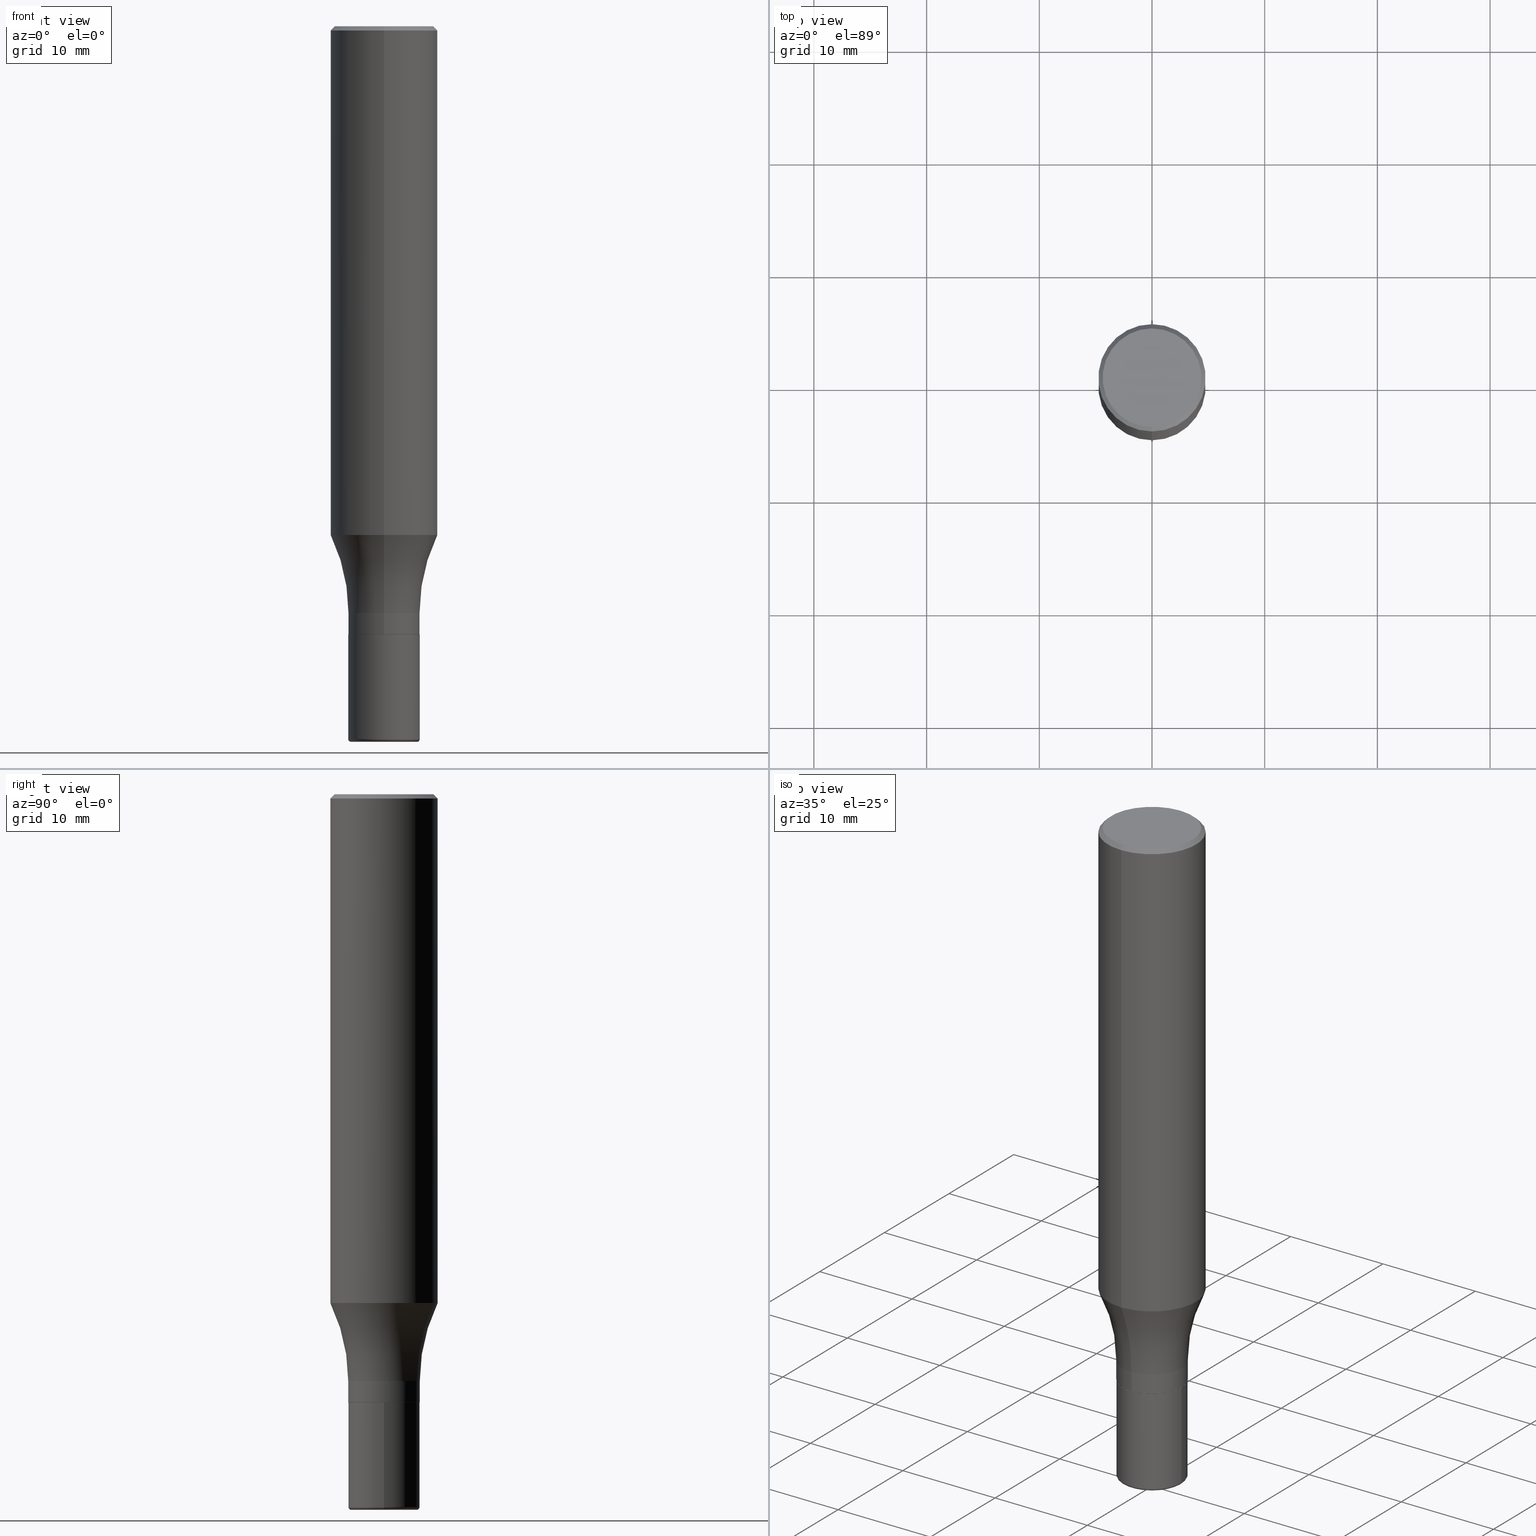
[diagram: canonical four-view strip — front | top / right | iso, engineering-drawing reading convention]
A machine part, canonical four-view strip (front | top / right | iso — engineering-drawing reading convention). The complete STEP part file that produces these views, byte-faithful:
ISO-10303-21;
HEADER;
FILE_DESCRIPTION (( 'STEP AP203' ),
    '1' );
FILE_NAME ('91242.STEP',
    '2024-02-29T19:33:33',
    ( '' ),
    ( '' ),
    'SwSTEP 2.0',
    'SolidWorks 2023',
    '' );
FILE_SCHEMA (( 'CONFIG_CONTROL_DESIGN' ));
ENDSEC;

DATA;
#1 = EDGE_CURVE ( 'NONE', #334, #469, #314, .T. ) ;
#2 = CARTESIAN_POINT ( 'NONE',  ( 5.329070518200801092E-15, 0.7499999999999930056, -2.050000000000002931 ) ) ;
#3 = CYLINDRICAL_SURFACE ( 'NONE', #440, 0.1250000000000000278 ) ;
#4 = LOCAL_TIME ( 14, 33, 33.00000000000000000, #302 ) ;
#5 = DIRECTION ( 'NONE',  ( -6.982962677686266711E-15, -1.000000000000000000, 3.490836523568371261E-15 ) ) ;
#6 = CYLINDRICAL_SURFACE ( 'NONE', #464, 0.1250000000000000278 ) ;
#7 = FACE_OUTER_BOUND ( 'NONE', #411, .T. ) ;
#8 = DIRECTION ( 'NONE',  ( -6.982962677686266711E-15, -1.000000000000000000, 3.490836523568371261E-15 ) ) ;
#9 = FACE_OUTER_BOUND ( 'NONE', #350, .T. ) ;
#10 = ORIENTED_EDGE ( 'NONE', *, *, #422, .F. ) ;
#11 = AXIS2_PLACEMENT_3D ( 'NONE', #505, #436, #356 ) ;
#12 = PERSON_AND_ORGANIZATION_ROLE ( 'creator' ) ;
#13 = AXIS2_PLACEMENT_3D ( 'NONE', #154, #317, #519 ) ;
#14 = ORGANIZATION ( 'UNSPECIFIED', 'UNSPECIFIED', '' ) ;
#15 = CARTESIAN_POINT ( 'NONE',  ( 0.1250000000000000833, -9.566658868430215055E-15, -2.489999999999999769 ) ) ;
#16 = ORIENTED_EDGE ( 'NONE', *, *, #349, .T. ) ;
#17 = CARTESIAN_POINT ( 'NONE',  ( 2.720611319883190822E-48, -3.882879628438597876E-34, -1.112306348986367091E-19 ) ) ;
#18 = DIRECTION ( 'NONE',  ( -6.982962677686265922E-15, -1.000000000000000000, 3.490836523568370866E-15 ) ) ;
#19 = VERTEX_POINT ( 'NONE', #269 ) ;
#20 = PERSON_AND_ORGANIZATION ( #259, #14 ) ;
#21 = VERTEX_POINT ( 'NONE', #30 ) ;
#22 = CIRCLE ( 'NONE', #381, 0.1250000000000000833 ) ;
#23 = VERTEX_POINT ( 'NONE', #432 ) ;
#24 = CALENDAR_DATE ( 2024, 29, 2 ) ;
#25 = ORIENTED_EDGE ( 'NONE', *, *, #170, .F. ) ;
#26 = EDGE_CURVE ( 'NONE', #224, #144, #72, .T. ) ;
#27 = PERSON_AND_ORGANIZATION_ROLE ( 'design_supplier' ) ;
#28 = ORIENTED_EDGE ( 'NONE', *, *, #367, .F. ) ;
#29 = AXIS2_PLACEMENT_3D ( 'NONE', #165, #248, #405 ) ;
#30 = CARTESIAN_POINT ( 'NONE',  ( 1.332267629550230841E-15, 0.1874999999999937550, -1.777568816028709087 ) ) ;
#31 = AXIS2_PLACEMENT_3D ( 'NONE', #171, #452, #223 ) ;
#32 = EDGE_CURVE ( 'NONE', #23, #507, #379, .T. ) ;
#33 = APPROVAL_ROLE ( '' ) ;
#34 = APPROVAL ( #372, 'UNSPECIFIED' ) ;
#35 = ORIENTED_EDGE ( 'NONE', *, *, #168, .T. ) ;
#36 = PRODUCT ( '91242', '91242', '', ( #250 ) ) ;
#37 = FACE_OUTER_BOUND ( 'NONE', #345, .T. ) ;
#38 = CARTESIAN_POINT ( 'NONE',  ( 3.668878617427351400E-31, -5.236254785352532066E-17, -0.01499999999999993179 ) ) ;
#39 = CIRCLE ( 'NONE', #412, 0.1150000000000000050 ) ;
#40 = AXIS2_PLACEMENT_3D ( 'NONE', #353, #328, #240 ) ;
#41 = DIRECTION ( 'NONE',  ( -2.445468806185136877E-29, 3.491481338843145188E-15, 1.000000000000000000 ) ) ;
#42 = FACE_OUTER_BOUND ( 'NONE', #493, .T. ) ;
#43 = ADVANCED_FACE ( 'NONE', ( #37 ), #351, .F. ) ;
#44 = DIRECTION ( 'NONE',  ( 1.000000000000000000, -6.982962677686265922E-15, 0.000000000000000000 ) ) ;
#45 = CARTESIAN_POINT ( 'NONE',  ( 0.1250000000000000278, -8.728703347107836346E-16, 6.095220969744921142E-30 ) ) ;
#46 = DIRECTION ( 'NONE',  ( -2.445919078284912062E-29, 3.490836523568370866E-15, 1.000000000000000000 ) ) ;
#47 = DIRECTION ( 'NONE',  ( -2.445919078284912062E-29, 3.490836523568370866E-15, 1.000000000000000000 ) ) ;
#48 = VECTOR ( 'NONE', #201, 39.37007874015748143 ) ;
#49 = APPROVAL_DATE_TIME ( #458, #34 ) ;
#50 = CARTESIAN_POINT ( 'NONE',  ( -8.693788533718883655E-16, -0.1245000000000074381, -2.124999999999999556 ) ) ;
#51 = FACE_OUTER_BOUND ( 'NONE', #295, .T. ) ;
#52 = EDGE_CURVE ( 'NONE', #453, #137, #39, .T. ) ;
#53 = CC_DESIGN_DATE_AND_TIME_ASSIGNMENT ( #109, #221, ( #488 ) ) ;
#54 = ADVANCED_FACE ( 'NONE', ( #228 ), #238, .T. ) ;
#55 = ORIENTED_EDGE ( 'NONE', *, *, #399, .F. ) ;
#56 = APPLICATION_PROTOCOL_DEFINITION ( 'international standard', 'config_control_design', 1994, #340 ) ;
#57 = CONICAL_SURFACE ( 'NONE', #346, 0.1875000000000000278, 0.7853981633974509435 ) ;
#58 = ORIENTED_EDGE ( 'NONE', *, *, #363, .F. ) ;
#59 = CARTESIAN_POINT ( 'NONE',  ( 0.1150000000000000050, -9.531744055041784983E-15, -2.500000000000000000 ) ) ;
#60 = ORIENTED_EDGE ( 'NONE', *, *, #276, .T. ) ;
#61 = DATE_AND_TIME ( #111, #388 ) ;
#62 = PLANE ( 'NONE',  #31 ) ;
#63 = ORIENTED_EDGE ( 'NONE', *, *, #261, .F. ) ;
#64 = AXIS2_PLACEMENT_3D ( 'NONE', #467, #74, #183 ) ;
#65 = AXIS2_PLACEMENT_3D ( 'NONE', #331, #278, #76 ) ;
#66 = CARTESIAN_POINT ( 'NONE',  ( 6.113672015462842613E-29, -8.728703347107864943E-15, -2.500000000000000000 ) ) ;
#67 = DIRECTION ( 'NONE',  ( -6.982962677686265922E-15, -1.000000000000000000, 3.494488891895536035E-15 ) ) ;
#68 = ORIENTED_EDGE ( 'NONE', *, *, #52, .T. ) ;
#69 = ADVANCED_FACE ( 'NONE', ( #237 ), #462, .T. ) ;
#70 = ADVANCED_FACE ( 'NONE', ( #520 ), #3, .T. ) ;
#71 = CIRCLE ( 'NONE', #212, 0.1150000000000000050 ) ;
#72 = LINE ( 'NONE', #390, #423 ) ;
#73 = CIRCLE ( 'NONE', #352, 0.01000000000000008174 ) ;
#74 = DIRECTION ( 'NONE',  ( -2.445919078284912062E-29, 3.490836523568370866E-15, 1.000000000000000000 ) ) ;
#75 = CARTESIAN_POINT ( 'NONE',  ( 1.110223024625203083E-15, 0.1249999999999928807, -2.050000000000000711 ) ) ;
#76 = DIRECTION ( 'NONE',  ( -1.000000000000000000, 7.105427357600964782E-15, 0.000000000000000000 ) ) ;
#77 = APPLICATION_CONTEXT ( 'configuration controlled 3d designs of mechanical parts and assemblies' ) ;
#78 = ADVANCED_FACE ( 'NONE', ( #198 ), #121, .F. ) ;
#79 = CARTESIAN_POINT ( 'NONE',  ( 0.1250000000000000000, -8.292268179752468540E-15, -2.125000000000000000 ) ) ;
#80 = CARTESIAN_POINT ( 'NONE',  ( 0.000000000000000000, 0.000000000000000000, 0.000000000000000000 ) ) ;
#81 = EDGE_CURVE ( 'NONE', #21, #102, #506, .T. ) ;
#82 = AXIS2_PLACEMENT_3D ( 'NONE', #322, #484, #157 ) ;
#83 = CIRCLE ( 'NONE', #470, 0.6249999999999998890 ) ;
#84 = AXIS2_PLACEMENT_3D ( 'NONE', #251, #294, #377 ) ;
#85 = CARTESIAN_POINT ( 'NONE',  ( 6.089217327400989947E-29, -8.693788533719431716E-15, -2.489999999999999769 ) ) ;
#86 = CARTESIAN_POINT ( 'NONE',  ( 5.197578041355437570E-29, -7.418027612582788978E-15, -2.125000000000000000 ) ) ;
#87 = LINE ( 'NONE', #90, #333 ) ;
#88 = CARTESIAN_POINT ( 'NONE',  ( 8.881784197001765083E-16, 0.1249999999999926170, -2.124500000000001165 ) ) ;
#89 = EDGE_CURVE ( 'NONE', #102, #21, #359, .T. ) ;
#90 = CARTESIAN_POINT ( 'NONE',  ( 1.309305502066175600E-15, 0.1874999999999999445, -0.01500000000000058752 ) ) ;
#91 = DIRECTION ( 'NONE',  ( -6.982962677686265922E-15, -1.000000000000000000, 4.388510833195602794E-15 ) ) ;
#92 = CIRCLE ( 'NONE', #13, 0.1250000000000000278 ) ;
#93 = ADVANCED_FACE ( 'NONE', ( #125 ), #403, .T. ) ;
#94 = CARTESIAN_POINT ( 'NONE',  ( 5.013211052679530360E-29, -7.157536744628448622E-15, -2.050000000000000266 ) ) ;
#95 = DIRECTION ( 'NONE',  ( -2.445468806185136597E-29, 3.491481338843145583E-15, 1.000000000000000000 ) ) ;
#96 = EDGE_LOOP ( 'NONE', ( #309, #147, #417, #498 ) ) ;
#97 = PERSON_AND_ORGANIZATION_ROLE ( 'design_owner' ) ;
#98 = ADVANCED_FACE ( 'NONE', ( #285 ), #341, .T. ) ;
#99 = VERTEX_POINT ( 'NONE', #366 ) ;
#100 = DIRECTION ( 'NONE',  ( -2.445919078284912062E-29, 3.490836523568370866E-15, 1.000000000000000000 ) ) ;
#101 = APPROVAL_PERSON_ORGANIZATION ( #226, #516, #33 ) ;
#102 = VERTEX_POINT ( 'NONE', #155 ) ;
#103 = APPLICATION_PROTOCOL_DEFINITION ( 'international standard', 'config_control_design', 1994, #77 ) ;
#104 = LINE ( 'NONE', #132, #508 ) ;
#105 = ORIENTED_EDGE ( 'NONE', *, *, #466, .F. ) ;
#106 = ORIENTED_EDGE ( 'NONE', *, *, #175, .F. ) ;
#107 = AXIS2_PLACEMENT_3D ( 'NONE', #204, #46, #361 ) ;
#108 = ORIENTED_EDGE ( 'NONE', *, *, #347, .T. ) ;
#109 = DATE_AND_TIME ( #24, #286 ) ;
#110 = ORIENTED_EDGE ( 'NONE', *, *, #1, .T. ) ;
#111 = CALENDAR_DATE ( 2024, 29, 2 ) ;
#112 = ORIENTED_EDGE ( 'NONE', *, *, #89, .F. ) ;
#113 = CIRCLE ( 'NONE', #203, 0.1250000000000000278 ) ;
#114 = ORIENTED_EDGE ( 'NONE', *, *, #349, .F. ) ;
#115 = AXIS2_PLACEMENT_3D ( 'NONE', #206, #501, #369 ) ;
#116 = DIRECTION ( 'NONE',  ( -2.445468806185136597E-29, 3.491481338843145583E-15, 1.000000000000000000 ) ) ;
#117 = ORIENTED_EDGE ( 'NONE', *, *, #449, .T. ) ;
#118 = ADVANCED_FACE ( 'NONE', ( #51 ), #6, .T. ) ;
#119 = DIRECTION ( 'NONE',  ( -2.445919078284912342E-29, 3.490836523568370866E-15, 1.000000000000000000 ) ) ;
#120 = DIRECTION ( 'NONE',  ( -6.982962677686265922E-15, -1.000000000000000000, 4.370956789862820361E-15 ) ) ;
#121 = PLANE ( 'NONE',  #148 ) ;
#122 = AXIS2_PLACEMENT_3D ( 'NONE', #518, #47, #329 ) ;
#123 = DIRECTION ( 'NONE',  ( -2.438088387897960049E-29, 3.491481338843145188E-15, 1.000000000000000000 ) ) ;
#124 = CARTESIAN_POINT ( 'NONE',  ( 0.000000000000000000, 0.000000000000000000, 0.000000000000000000 ) ) ;
#125 = FACE_OUTER_BOUND ( 'NONE', #434, .T. ) ;
#126 = CC_DESIGN_DATE_AND_TIME_ASSIGNMENT ( #263, #406, ( #457 ) ) ;
#127 = CARTESIAN_POINT ( 'NONE',  ( 8.881784197001254296E-16, 0.1250000000000000278, -4.363545654460464569E-16 ) ) ;
#128 = DIRECTION ( 'NONE',  ( -4.851104656540975319E-15, -0.7071067811865516806, -0.7071067811865431318 ) ) ;
#129 = FACE_OUTER_BOUND ( 'NONE', #513, .T. ) ;
#130 = AXIS2_PLACEMENT_3D ( 'NONE', #281, #159, #354 ) ;
#131 = DIRECTION ( 'NONE',  ( 1.000000000000000000, 0.000000000000000000, 0.000000000000000000 ) ) ;
#132 = CARTESIAN_POINT ( 'NONE',  ( -1.309305502066174811E-15, -0.1874999999999999722, 6.545318481690694881E-16 ) ) ;
#133 = ORIENTED_EDGE ( 'NONE', *, *, #347, .F. ) ;
#134 = ORIENTED_EDGE ( 'NONE', *, *, #52, .F. ) ;
#135 = LENGTH_MEASURE_WITH_UNIT ( LENGTH_MEASURE( 0.02539999999999999897 ), #179 );
#136 = CARTESIAN_POINT ( 'NONE',  ( -8.728703347107333448E-16, -0.1250000000000071887, -2.049999999999999822 ) ) ;
#137 = VERTEX_POINT ( 'NONE', #241 ) ;
#138 = AXIS2_PLACEMENT_3D ( 'NONE', #86, #244, #91 ) ;
#139 = CALENDAR_DATE ( 2024, 29, 2 ) ;
#140 = LOCAL_TIME ( 14, 33, 33.00000000000000000, #499 ) ;
#141 = FACE_OUTER_BOUND ( 'NONE', #509, .T. ) ;
#142 = ORIENTED_EDGE ( 'NONE', *, *, #89, .T. ) ;
#143 = EDGE_CURVE ( 'NONE', #230, #266, #283, .T. ) ;
#144 = VERTEX_POINT ( 'NONE', #88 ) ;
#145 = EDGE_CURVE ( 'NONE', #224, #189, #324, .T. ) ;
#146 = COORDINATED_UNIVERSAL_TIME_OFFSET ( 5, 0, .BEHIND. ) ;
#147 = ORIENTED_EDGE ( 'NONE', *, *, #145, .T. ) ;
#148 = AXIS2_PLACEMENT_3D ( 'NONE', #202, #446, #482 ) ;
#149 = VERTEX_POINT ( 'NONE', #402 ) ;
#150 = EDGE_LOOP ( 'NONE', ( #232, #181, #110, #106 ) ) ;
#151 = ORIENTED_EDGE ( 'NONE', *, *, #481, .T. ) ;
#152 = TOROIDAL_SURFACE ( 'NONE', #515, 0.7500000000000001110, 0.6250000000000000000 ) ;
#153 = CARTESIAN_POINT ( 'NONE',  ( 5.197578041355437570E-29, -7.418027612582788978E-15, -2.125000000000000000 ) ) ;
#154 = CARTESIAN_POINT ( 'NONE',  ( 5.014134110484069838E-29, -7.156214873315160631E-15, -2.050000000000000266 ) ) ;
#155 = CARTESIAN_POINT ( 'NONE',  ( -1.309305502066131029E-15, -0.1875000000000061340, -1.777568816028707532 ) ) ;
#156 = FACE_OUTER_BOUND ( 'NONE', #150, .T. ) ;
#157 = DIRECTION ( 'NONE',  ( 1.000000000000000000, -6.982962677686265922E-15, 4.883557194083112901E-29 ) ) ;
#158 = DIRECTION ( 'NONE',  ( -6.982962677686265922E-15, -1.000000000000000000, 3.490836523568370866E-15 ) ) ;
#159 = DIRECTION ( 'NONE',  ( -2.445919078284912062E-29, 3.490836523568370866E-15, 1.000000000000000000 ) ) ;
#160 = ADVANCED_FACE ( 'NONE', ( #42 ), #398, .T. ) ;
#161 = CC_DESIGN_APPROVAL ( #516, ( #488 ) ) ;
#162 = CARTESIAN_POINT ( 'NONE',  ( 5.013211052679530360E-29, -7.157536744628448622E-15, -2.050000000000000266 ) ) ;
#163 = CARTESIAN_POINT ( 'NONE',  ( -1.286343374582161576E-15, -0.1875000000000000833, -0.01499999999999927607 ) ) ;
#164 = DIRECTION ( 'NONE',  ( -4.937700262166401865E-15, -0.7071067811868105846, 0.7071067811862842278 ) ) ;
#165 = CARTESIAN_POINT ( 'NONE',  ( -5.237222008264649546E-15, -0.7500000000000072164, -2.049999999999997602 ) ) ;
#166 = FACE_OUTER_BOUND ( 'NONE', #299, .T. ) ;
#167 = ORIENTED_EDGE ( 'NONE', *, *, #170, .T. ) ;
#168 = EDGE_CURVE ( 'NONE', #503, #266, #362, .T. ) ;
#169 = AXIS2_PLACEMENT_3D ( 'NONE', #38, #438, #205 ) ;
#170 = EDGE_CURVE ( 'NONE', #149, #23, #327, .T. ) ;
#171 = CARTESIAN_POINT ( 'NONE',  ( 8.728703347108351078E-16, 0.1249999999999925754, -2.125000000000000888 ) ) ;
#172 = ORIENTED_EDGE ( 'NONE', *, *, #184, .T. ) ;
#173 = ORIENTED_EDGE ( 'NONE', *, *, #184, .F. ) ;
#174 = FACE_OUTER_BOUND ( 'NONE', #176, .T. ) ;
#175 = EDGE_CURVE ( 'NONE', #102, #469, #225, .T. ) ;
#176 = EDGE_LOOP ( 'NONE', ( #451, #172, #151, #344 ) ) ;
#177 = CLOSED_SHELL ( 'NONE', ( #69, #70, #514, #400, #495, #207 ) ) ;
#178 = AXIS2_PLACEMENT_3D ( 'NONE', #330, #116, #473 ) ;
#179 =( LENGTH_UNIT ( ) NAMED_UNIT ( * ) SI_UNIT ( $, .METRE. ) );
#180 = EDGE_CURVE ( 'NONE', #137, #430, #185, .T. ) ;
#181 = ORIENTED_EDGE ( 'NONE', *, *, #235, .T. ) ;
#182 = DIRECTION ( 'NONE',  ( 1.000000000000000000, -6.982962677686265133E-15, 0.000000000000000000 ) ) ;
#183 = DIRECTION ( 'NONE',  ( -6.982962677686265922E-15, -1.000000000000000000, 4.370956789862820361E-15 ) ) ;
#184 = EDGE_CURVE ( 'NONE', #137, #453, #71, .T. ) ;
#185 = CIRCLE ( 'NONE', #65, 0.01000000000000008174 ) ;
#186 = TOROIDAL_SURFACE ( 'NONE', #454, 0.7500000000000001110, 0.6250000000000000000 ) ;
#187 = ORIENTED_EDGE ( 'NONE', *, *, #410, .F. ) ;
#188 = SHAPE_DEFINITION_REPRESENTATION ( #512, #319 ) ;
#189 = VERTEX_POINT ( 'NONE', #293 ) ;
#190 = ORIENTED_EDGE ( 'NONE', *, *, #481, .F. ) ;
#191 = AXIS2_PLACEMENT_3D ( 'NONE', #312, #275, #67 ) ;
#192 = AXIS2_PLACEMENT_3D ( 'NONE', #17, #100, #326 ) ;
#193 = DIRECTION ( 'NONE',  ( -2.445919078284912062E-29, 3.490836523568370866E-15, 1.000000000000000000 ) ) ;
#194 = CARTESIAN_POINT ( 'NONE',  ( 0.000000000000000000, 0.000000000000000000, 0.000000000000000000 ) ) ;
#195 = CC_DESIGN_SECURITY_CLASSIFICATION ( #488, ( #301 ) ) ;
#196 = CARTESIAN_POINT ( 'NONE',  ( 6.135555720802942881E-29, -8.697364635517684190E-15, -2.500000000000000000 ) ) ;
#197 = FACE_OUTER_BOUND ( 'NONE', #208, .T. ) ;
#198 = FACE_OUTER_BOUND ( 'NONE', #384, .T. ) ;
#199 = CARTESIAN_POINT ( 'NONE',  ( 1.332267629550187454E-15, 0.1874999999999999722, -6.545318481690694881E-16 ) ) ;
#200 = DIRECTION ( 'NONE',  ( -2.445919078284912062E-29, 3.490836523568370866E-15, 1.000000000000000000 ) ) ;
#201 = DIRECTION ( 'NONE',  ( -2.445919078284912342E-29, 3.490836523568370866E-15, 1.000000000000000000 ) ) ;
#202 = CARTESIAN_POINT ( 'NONE',  ( 1.204561061900881047E-15, 0.1725000000000000144, -6.022249156329932853E-16 ) ) ;
#203 = AXIS2_PLACEMENT_3D ( 'NONE', #445, #404, #435 ) ;
#204 = CARTESIAN_POINT ( 'NONE',  ( 3.668878617427351400E-31, -5.236254785352532066E-17, -0.01499999999999993179 ) ) ;
#205 = DIRECTION ( 'NONE',  ( 6.982962677686265922E-15, 1.000000000000000000, -3.494488891895536035E-15 ) ) ;
#206 = CARTESIAN_POINT ( 'NONE',  ( 0.000000000000000000, 0.000000000000000000, 0.000000000000000000 ) ) ;
#207 = ADVANCED_FACE ( 'NONE', ( #129 ), #448, .F. ) ;
#208 = EDGE_LOOP ( 'NONE', ( #217, #472, #306, #28 ) ) ;
#209 = CARTESIAN_POINT ( 'NONE',  ( 0.000000000000000000, 0.000000000000000000, 0.000000000000000000 ) ) ;
#210 = CARTESIAN_POINT ( 'NONE',  ( 3.668878617427351400E-31, -5.236254785352532066E-17, -0.01499999999999993179 ) ) ;
#211 = ORIENTED_EDGE ( 'NONE', *, *, #143, .F. ) ;
#212 = AXIS2_PLACEMENT_3D ( 'NONE', #252, #95, #407 ) ;
#213 = CC_DESIGN_APPROVAL ( #311, ( #457 ) ) ;
#214 = PERSON_AND_ORGANIZATION ( #259, #14 ) ;
#215 = CARTESIAN_POINT ( 'NONE',  ( 8.864020628607770451E-16, 0.1244999999999926166, -2.125000000000000888 ) ) ;
#216 = DIRECTION ( 'NONE',  ( -2.445468806185136597E-29, 3.491481338843145583E-15, 1.000000000000000000 ) ) ;
#217 = ORIENTED_EDGE ( 'NONE', *, *, #313, .F. ) ;
#218 = APPROVAL_DATE_TIME ( #332, #311 ) ;
#219 = CC_DESIGN_PERSON_AND_ORGANIZATION_ASSIGNMENT ( #292, #12, ( #457 ) ) ;
#220 = ORIENTED_EDGE ( 'NONE', *, *, #145, .F. ) ;
#221 = DATE_TIME_ROLE ( 'classification_date' ) ;
#222 = MANIFOLD_SOLID_BREP ( 'Body-Move/Copy2[2]', #323 ) ;
#223 = DIRECTION ( 'NONE',  ( -1.000000000000000000, 6.982962677686265922E-15, -4.876176775795935793E-29 ) ) ;
#224 = VERTEX_POINT ( 'NONE', #215 ) ;
#225 = CIRCLE ( 'NONE', #29, 0.6249999999999998890 ) ;
#226 = PERSON_AND_ORGANIZATION ( #259, #14 ) ;
#227 = DIRECTION ( 'NONE',  ( -2.445468806185136597E-29, 3.491481338843145583E-15, 1.000000000000000000 ) ) ;
#228 = FACE_OUTER_BOUND ( 'NONE', #96, .T. ) ;
#229 = PERSON_AND_ORGANIZATION ( #259, #14 ) ;
#230 = VERTEX_POINT ( 'NONE', #373 ) ;
#231 = VECTOR ( 'NONE', #119, 39.37007874015748143 ) ;
#232 = ORIENTED_EDGE ( 'NONE', *, *, #81, .F. ) ;
#233 = EDGE_CURVE ( 'NONE', #149, #99, #425, .T. ) ;
#234 = ORIENTED_EDGE ( 'NONE', *, *, #471, .F. ) ;
#235 = EDGE_CURVE ( 'NONE', #21, #334, #83, .T. ) ;
#236 = LINE ( 'NONE', #394, #307 ) ;
#237 = FACE_OUTER_BOUND ( 'NONE', #386, .T. ) ;
#238 = CONICAL_SURFACE ( 'NONE', #11, 0.1245000000000000273, 0.7853981633978239785 ) ;
#239 = AXIS2_PLACEMENT_3D ( 'NONE', #288, #442, #395 ) ;
#240 = DIRECTION ( 'NONE',  ( 1.000000000000000000, -6.982962677686270655E-15, 0.000000000000000000 ) ) ;
#241 = CARTESIAN_POINT ( 'NONE',  ( -0.1150000000000000050, -7.858594657501527349E-15, -2.500000000000000000 ) ) ;
#242 = ADVANCED_FACE ( 'NONE', ( #197 ), #357, .T. ) ;
#243 = DIRECTION ( 'NONE',  ( -2.445468806185136597E-29, 3.491481338843145583E-15, 1.000000000000000000 ) ) ;
#244 = DIRECTION ( 'NONE',  ( -2.445919078284912062E-29, 3.490836523568370866E-15, 1.000000000000000000 ) ) ;
#245 = LINE ( 'NONE', #199, #48 ) ;
#246 = DIRECTION ( 'NONE',  ( -2.445919078284912062E-29, 3.490836523568370866E-15, 1.000000000000000000 ) ) ;
#247 = DIRECTION ( 'NONE',  ( 4.937700262164560664E-15, 0.7071067811865469066, -0.7071067811865481278 ) ) ;
#248 = DIRECTION ( 'NONE',  ( -1.000000000000000000, 6.982962677686265922E-15, -4.883557194083112340E-29 ) ) ;
#249 = CIRCLE ( 'NONE', #107, 0.1875000000000000278 ) ;
#250 = MECHANICAL_CONTEXT ( 'NONE', #77, 'mechanical' ) ;
#251 = CARTESIAN_POINT ( 'NONE',  ( 2.720611319883190822E-48, -3.882879628438597876E-34, -1.112306348986367091E-19 ) ) ;
#252 = CARTESIAN_POINT ( 'NONE',  ( 6.113672015462842613E-29, -8.728703347107864943E-15, -2.500000000000000000 ) ) ;
#253 = PERSON_AND_ORGANIZATION ( #259, #14 ) ;
#254 = DIRECTION ( 'NONE',  ( 1.000000000000000000, -6.982962677686265922E-15, 0.000000000000000000 ) ) ;
#255 = ORIENTED_EDGE ( 'NONE', *, *, #261, .T. ) ;
#256 =( NAMED_UNIT ( * ) SI_UNIT ( $, .STERADIAN. ) SOLID_ANGLE_UNIT ( ) );
#257 = ORIENTED_EDGE ( 'NONE', *, *, #422, .T. ) ;
#258 = AXIS2_PLACEMENT_3D ( 'NONE', #196, #123, #416 ) ;
#259 = PERSON ( 'UNSPECIFIED', 'UNSPECIFIED', 'UNSPECIFIED', ('UNSPECIFIED'), ('UNSPECIFIED'), ('UNSPECIFIED') ) ;
#260 = TOROIDAL_SURFACE ( 'NONE', #262, 0.1150000000000000050, 0.01000000000000008174 ) ;
#261 = EDGE_CURVE ( 'NONE', #144, #334, #517, .T. ) ;
#262 = AXIS2_PLACEMENT_3D ( 'NONE', #496, #409, #335 ) ;
#263 = DATE_AND_TIME ( #376, #4 ) ;
#264 = APPROVAL_ROLE ( '' ) ;
#265 = FACE_OUTER_BOUND ( 'NONE', #463, .T. ) ;
#266 = VERTEX_POINT ( 'NONE', #79 ) ;
#267 = ORIENTED_EDGE ( 'NONE', *, *, #320, .T. ) ;
#268 = CIRCLE ( 'NONE', #40, 0.1250000000000000000 ) ;
#269 = CARTESIAN_POINT ( 'NONE',  ( -8.728703347107315698E-16, -0.1250000000000074385, -2.124499999999999833 ) ) ;
#270 = ORIENTED_EDGE ( 'NONE', *, *, #235, .F. ) ;
#271 = ORIENTED_EDGE ( 'NONE', *, *, #320, .F. ) ;
#272 = ADVANCED_FACE ( 'NONE', ( #156 ), #186, .F. ) ;
#273 = CC_DESIGN_PERSON_AND_ORGANIZATION_ASSIGNMENT ( #304, #427, ( #301 ) ) ;
#274 = AXIS2_PLACEMENT_3D ( 'NONE', #85, #243, #44 ) ;
#275 = DIRECTION ( 'NONE',  ( -2.445919078284912062E-29, 3.490836523568370866E-15, 1.000000000000000000 ) ) ;
#276 = EDGE_CURVE ( 'NONE', #189, #224, #433, .T. ) ;
#277 = CARTESIAN_POINT ( 'NONE',  ( -8.728703347107834374E-16, -0.1250000000000000278, 4.363545654460464569E-16 ) ) ;
#278 = DIRECTION ( 'NONE',  ( 7.105427357601001859E-15, 1.000000000000000000, -3.491481338843145583E-15 ) ) ;
#279 = UNCERTAINTY_MEASURE_WITH_UNIT (LENGTH_MEASURE( 1.000000000000000082E-05 ), #491, 'distance_accuracy_value', 'NONE');
#280 = DIRECTION ( 'NONE',  ( 7.105427357601003436E-15, 1.000000000000000000, 0.000000000000000000 ) ) ;
#281 = CARTESIAN_POINT ( 'NONE',  ( 5.197578041355437570E-29, -7.418027612582788978E-15, -2.125000000000000000 ) ) ;
#282 = AXIS2_PLACEMENT_3D ( 'NONE', #392, #246, #480 ) ;
#283 = CIRCLE ( 'NONE', #239, 0.1250000000000000000 ) ;
#284 = DIRECTION ( 'NONE',  ( -2.445919078284912062E-29, 3.490836523568370866E-15, 1.000000000000000000 ) ) ;
#285 = FACE_OUTER_BOUND ( 'NONE', #383, .T. ) ;
#286 = LOCAL_TIME ( 14, 33, 33.00000000000000000, #146 ) ;
#287 = DIRECTION ( 'NONE',  ( -2.445919078284912342E-29, 3.490836523568370866E-15, 1.000000000000000000 ) ) ;
#288 = CARTESIAN_POINT ( 'NONE',  ( 5.196621213143415268E-29, -7.419397845041685201E-15, -2.125000000000000000 ) ) ;
#289 = DIRECTION ( 'NONE',  ( -2.445468806185136597E-29, 3.491481338843145583E-15, 1.000000000000000000 ) ) ;
#290 = DESIGN_CONTEXT ( 'detailed design', #340, 'design' ) ;
#291 = EDGE_CURVE ( 'NONE', #144, #19, #113, .T. ) ;
#292 = PERSON_AND_ORGANIZATION ( #259, #14 ) ;
#293 = CARTESIAN_POINT ( 'NONE',  ( -8.693788533718883655E-16, -0.1245000000000074381, -2.124999999999999556 ) ) ;
#294 = DIRECTION ( 'NONE',  ( -2.445919078284912062E-29, 3.490836523568370866E-15, 1.000000000000000000 ) ) ;
#295 = EDGE_LOOP ( 'NONE', ( #63, #415, #460, #380 ) ) ;
#296 = DIRECTION ( 'NONE',  ( 6.982962677686265922E-15, 1.000000000000000000, -3.494488891895536035E-15 ) ) ;
#297 = ORIENTED_EDGE ( 'NONE', *, *, #276, .F. ) ;
#298 = CYLINDRICAL_SURFACE ( 'NONE', #115, 0.1250000000000000278 ) ;
#299 = EDGE_LOOP ( 'NONE', ( #468, #167, #490, #133 ) ) ;
#300 = VECTOR ( 'NONE', #287, 39.37007874015748143 ) ;
#301 = PRODUCT_DEFINITION_FORMATION_WITH_SPECIFIED_SOURCE ( 'ANY', '', #36, .NOT_KNOWN. ) ;
#302 = COORDINATED_UNIVERSAL_TIME_OFFSET ( 5, 0, .BEHIND. ) ;
#303 = ORIENTED_EDGE ( 'NONE', *, *, #313, .T. ) ;
#304 = PERSON_AND_ORGANIZATION ( #259, #14 ) ;
#305 = ORIENTED_EDGE ( 'NONE', *, *, #143, .T. ) ;
#306 = ORIENTED_EDGE ( 'NONE', *, *, #466, .T. ) ;
#307 = VECTOR ( 'NONE', #41, 39.37007874015748143 ) ;
#308 = CC_DESIGN_APPROVAL ( #34, ( #301 ) ) ;
#309 = ORIENTED_EDGE ( 'NONE', *, *, #26, .F. ) ;
#310 = EDGE_LOOP ( 'NONE', ( #504, #375, #271, #420 ) ) ;
#311 = APPROVAL ( #338, 'UNSPECIFIED' ) ;
#312 = CARTESIAN_POINT ( 'NONE',  ( 3.668878617427351400E-31, -5.236254785352532066E-17, -0.01499999999999993179 ) ) ;
#313 = EDGE_CURVE ( 'NONE', #21, #507, #245, .T. ) ;
#314 = CIRCLE ( 'NONE', #64, 0.1250000000000000278 ) ;
#315 = VECTOR ( 'NONE', #358, 39.37007874015748143 ) ;
#316 = DIRECTION ( 'NONE',  ( -2.445919078284911781E-29, 3.490836523568370866E-15, 1.000000000000000000 ) ) ;
#317 = DIRECTION ( 'NONE',  ( -2.445919078284912062E-29, 3.490836523568370866E-15, 1.000000000000000000 ) ) ;
#318 = DIRECTION ( 'NONE',  ( -6.982962677686265922E-15, -1.000000000000000000, 3.490836523568370866E-15 ) ) ;
#319 = ADVANCED_BREP_SHAPE_REPRESENTATION ( '91242', ( #389, #222, #325 ), #360 ) ;
#320 = EDGE_CURVE ( 'NONE', #266, #230, #268, .T. ) ;
#321 = CARTESIAN_POINT ( 'NONE',  ( 5.196355081816296386E-29, -7.416282194321006398E-15, -2.124500000000000721 ) ) ;
#322 = CARTESIAN_POINT ( 'NONE',  ( 6.089217327400989947E-29, -8.693788533719431716E-15, -2.489999999999999769 ) ) ;
#323 = CLOSED_SHELL ( 'NONE', ( #160, #461, #93, #497, #272, #455, #118, #54, #43, #78, #98, #242 ) ) ;
#324 = CIRCLE ( 'NONE', #138, 0.1245000000000000273 ) ;
#325 = AXIS2_PLACEMENT_3D ( 'NONE', #209, #486, #131 ) ;
#326 = DIRECTION ( 'NONE',  ( -6.982962677686266711E-15, -1.000000000000000000, 3.490836523568370472E-15 ) ) ;
#327 = LINE ( 'NONE', #163, #500 ) ;
#328 = DIRECTION ( 'NONE',  ( -2.445468806185136597E-29, 3.491481338843145583E-15, 1.000000000000000000 ) ) ;
#329 = DIRECTION ( 'NONE',  ( -6.982962677686266711E-15, -1.000000000000000000, 2.913971193241881161E-15 ) ) ;
#330 = CARTESIAN_POINT ( 'NONE',  ( 0.000000000000000000, 0.000000000000000000, 0.000000000000000000 ) ) ;
#331 = CARTESIAN_POINT ( 'NONE',  ( -0.1150000000000000050, -7.876664387595316565E-15, -2.489999999999999769 ) ) ;
#332 = DATE_AND_TIME ( #494, #502 ) ;
#333 = VECTOR ( 'NONE', #247, 39.37007874015748143 ) ;
#334 = VERTEX_POINT ( 'NONE', #75 ) ;
#335 = DIRECTION ( 'NONE',  ( 1.000000000000000000, -6.982962677686265922E-15, 4.883557194083112901E-29 ) ) ;
#336 = ORIENTED_EDGE ( 'NONE', *, *, #233, .T. ) ;
#337 = DIRECTION ( 'NONE',  ( 1.000000000000000000, -6.982962677686275388E-15, 0.000000000000000000 ) ) ;
#338 = APPROVAL_STATUS ( 'not_yet_approved' ) ;
#339 = ORIENTED_EDGE ( 'NONE', *, *, #180, .T. ) ;
#340 = APPLICATION_CONTEXT ( 'configuration controlled 3d designs of mechanical parts and assemblies' ) ;
#341 = CONICAL_SURFACE ( 'NONE', #169, 0.1875000000000000278, 0.7853981633974509435 ) ;
#342 = PERSON_AND_ORGANIZATION_ROLE ( 'classification_officer' ) ;
#343 = ORIENTED_EDGE ( 'NONE', *, *, #367, .T. ) ;
#344 = ORIENTED_EDGE ( 'NONE', *, *, #449, .F. ) ;
#345 = EDGE_LOOP ( 'NONE', ( #297, #220 ) ) ;
#346 = AXIS2_PLACEMENT_3D ( 'NONE', #210, #489, #296 ) ;
#347 = EDGE_CURVE ( 'NONE', #99, #507, #87, .T. ) ;
#348 = ORIENTED_EDGE ( 'NONE', *, *, #450, .F. ) ;
#349 = EDGE_CURVE ( 'NONE', #469, #334, #92, .T. ) ;
#350 = EDGE_LOOP ( 'NONE', ( #270, #112, #391, #16 ) ) ;
#351 = PLANE ( 'NONE',  #485 ) ;
#352 = AXIS2_PLACEMENT_3D ( 'NONE', #378, #413, #337 ) ;
#353 = CARTESIAN_POINT ( 'NONE',  ( 5.196621213143415268E-29, -7.419397845041685201E-15, -2.125000000000000000 ) ) ;
#354 = DIRECTION ( 'NONE',  ( -6.982962677686265922E-15, -1.000000000000000000, 4.388510833195602794E-15 ) ) ;
#355 = DIRECTION ( 'NONE',  ( -6.982962677686265922E-15, -1.000000000000000000, 4.388510833195602794E-15 ) ) ;
#356 = DIRECTION ( 'NONE',  ( -6.982962677686265922E-15, -1.000000000000000000, 4.388510833195602794E-15 ) ) ;
#357 = CYLINDRICAL_SURFACE ( 'NONE', #487, 0.1874999999999999722 ) ;
#358 = DIRECTION ( 'NONE',  ( -2.445468806185136877E-29, 3.491481338843145188E-15, 1.000000000000000000 ) ) ;
#359 = CIRCLE ( 'NONE', #122, 0.1874999999999999722 ) ;
#360 =( GEOMETRIC_REPRESENTATION_CONTEXT ( 3 ) GLOBAL_UNCERTAINTY_ASSIGNED_CONTEXT ( ( #279 ) ) GLOBAL_UNIT_ASSIGNED_CONTEXT ( ( #491, #483, #256 ) ) REPRESENTATION_CONTEXT ( 'NONE', 'WORKASPACE' ) );
#361 = DIRECTION ( 'NONE',  ( -6.982962677686265922E-15, -1.000000000000000000, 3.494488891895536035E-15 ) ) ;
#362 = LINE ( 'NONE', #45, #315 ) ;
#363 = EDGE_CURVE ( 'NONE', #189, #19, #401, .T. ) ;
#364 = APPROVAL_ROLE ( '' ) ;
#365 = LINE ( 'NONE', #277, #231 ) ;
#366 = CARTESIAN_POINT ( 'NONE',  ( 1.256933281983528323E-15, 0.1725000000000000144, -6.022805309504425943E-16 ) ) ;
#367 = EDGE_CURVE ( 'NONE', #507, #23, #249, .T. ) ;
#368 = COORDINATED_UNIVERSAL_TIME_OFFSET ( 5, 0, .BEHIND. ) ;
#369 = DIRECTION ( 'NONE',  ( -6.982962677686265922E-15, -1.000000000000000000, 3.490836523568370866E-15 ) ) ;
#370 = AXIS2_PLACEMENT_3D ( 'NONE', #321, #475, #120 ) ;
#371 = ORIENTED_EDGE ( 'NONE', *, *, #26, .T. ) ;
#372 = APPROVAL_STATUS ( 'not_yet_approved' ) ;
#373 = CARTESIAN_POINT ( 'NONE',  ( -0.1250000000000000000, -7.168414769680433226E-15, -2.125000000000000000 ) ) ;
#374 = DIRECTION ( 'NONE',  ( -2.445919078284912062E-29, 3.490836523568370866E-15, 1.000000000000000000 ) ) ;
#375 = ORIENTED_EDGE ( 'NONE', *, *, #410, .T. ) ;
#376 = CALENDAR_DATE ( 2024, 29, 2 ) ;
#377 = DIRECTION ( 'NONE',  ( -6.982962677686266711E-15, -1.000000000000000000, 3.490836523568370472E-15 ) ) ;
#378 = CARTESIAN_POINT ( 'NONE',  ( 0.1150000000000000050, -9.496829241653351756E-15, -2.489999999999999769 ) ) ;
#379 = CIRCLE ( 'NONE', #191, 0.1875000000000000278 ) ;
#380 = ORIENTED_EDGE ( 'NONE', *, *, #1, .F. ) ;
#381 = AXIS2_PLACEMENT_3D ( 'NONE', #459, #216, #254 ) ;
#382 = APPROVAL_PERSON_ORGANIZATION ( #214, #311, #364 ) ;
#383 = EDGE_LOOP ( 'NONE', ( #25, #234, #108, #343 ) ) ;
#384 = EDGE_LOOP ( 'NONE', ( #456, #336 ) ) ;
#385 = APPROVAL_STATUS ( 'not_yet_approved' ) ;
#386 = EDGE_LOOP ( 'NONE', ( #68, #339, #348, #190 ) ) ;
#387 = VECTOR ( 'NONE', #164, 39.37007874015748854 ) ;
#388 = LOCAL_TIME ( 14, 33, 33.00000000000000000, #421 ) ;
#389 = MANIFOLD_SOLID_BREP ( 'Body-Move/Copy2[1]', #177 ) ;
#390 = CARTESIAN_POINT ( 'NONE',  ( 8.846257060213767931E-16, 0.1244999999999926166, -2.125000000000000888 ) ) ;
#391 = ORIENTED_EDGE ( 'NONE', *, *, #175, .T. ) ;
#392 = CARTESIAN_POINT ( 'NONE',  ( 4.347789480088940761E-29, -6.205202146149201072E-15, -1.777568816028708421 ) ) ;
#393 = CIRCLE ( 'NONE', #370, 0.1250000000000000278 ) ;
#394 = CARTESIAN_POINT ( 'NONE',  ( -0.1250000000000000278, 8.881784197001254296E-16, -6.148668862818634329E-30 ) ) ;
#395 = DIRECTION ( 'NONE',  ( 1.000000000000000000, -6.982962677686270655E-15, 0.000000000000000000 ) ) ;
#396 = CC_DESIGN_PERSON_AND_ORGANIZATION_ASSIGNMENT ( #429, #342, ( #488 ) ) ;
#397 = CARTESIAN_POINT ( 'NONE',  ( 5.197578041355437570E-29, -7.418027612582788978E-15, -2.125000000000000000 ) ) ;
#398 = CYLINDRICAL_SURFACE ( 'NONE', #477, 0.1874999999999999722 ) ;
#399 = EDGE_CURVE ( 'NONE', #19, #469, #365, .T. ) ;
#400 = ADVANCED_FACE ( 'NONE', ( #7 ), #437, .T. ) ;
#401 = LINE ( 'NONE', #50, #387 ) ;
#402 = CARTESIAN_POINT ( 'NONE',  ( -1.234889639598875176E-15, -0.1725000000000000144, 6.020580696806453585E-16 ) ) ;
#403 = CONICAL_SURFACE ( 'NONE', #130, 0.1245000000000000273, 0.7853981633978239785 ) ;
#404 = DIRECTION ( 'NONE',  ( -2.445919078284912062E-29, 3.490836523568370866E-15, 1.000000000000000000 ) ) ;
#405 = DIRECTION ( 'NONE',  ( -6.982962677686265133E-15, -1.000000000000000000, 0.000000000000000000 ) ) ;
#406 = DATE_TIME_ROLE ( 'creation_date' ) ;
#407 = DIRECTION ( 'NONE',  ( 1.000000000000000000, -6.982962677686265133E-15, 0.000000000000000000 ) ) ;
#408 = DIMENSIONAL_EXPONENTS ( 1.000000000000000000, 0.000000000000000000, 0.000000000000000000, 0.000000000000000000, 0.000000000000000000, 0.000000000000000000, 0.000000000000000000 ) ;
#409 = DIRECTION ( 'NONE',  ( -2.445468806185136597E-29, 3.491481338843145583E-15, 1.000000000000000000 ) ) ;
#410 = EDGE_CURVE ( 'NONE', #430, #230, #236, .T. ) ;
#411 = EDGE_LOOP ( 'NONE', ( #187, #117, #35, #211 ) ) ;
#412 = AXIS2_PLACEMENT_3D ( 'NONE', #66, #227, #182 ) ;
#413 = DIRECTION ( 'NONE',  ( -6.982962677686266711E-15, -1.000000000000000000, 3.491481338843145583E-15 ) ) ;
#414 = CIRCLE ( 'NONE', #84, 0.1725000000000000144 ) ;
#415 = ORIENTED_EDGE ( 'NONE', *, *, #291, .T. ) ;
#416 = DIRECTION ( 'NONE',  ( 1.000000000000000000, -6.982962677686265922E-15, 4.876176775795935793E-29 ) ) ;
#417 = ORIENTED_EDGE ( 'NONE', *, *, #363, .T. ) ;
#418 = CC_DESIGN_PERSON_AND_ORGANIZATION_ASSIGNMENT ( #229, #27, ( #301 ) ) ;
#419 = CARTESIAN_POINT ( 'NONE',  ( 1.309305502066175600E-15, 0.1874999999999999445, -0.01500000000000058752 ) ) ;
#420 = ORIENTED_EDGE ( 'NONE', *, *, #168, .F. ) ;
#421 = COORDINATED_UNIVERSAL_TIME_OFFSET ( 5, 0, .BEHIND. ) ;
#422 = EDGE_CURVE ( 'NONE', #19, #144, #393, .T. ) ;
#423 = VECTOR ( 'NONE', #510, 39.37007874015748854 ) ;
#424 = DIRECTION ( 'NONE',  ( -6.982962677686265922E-15, -1.000000000000000000, 3.490836523568370866E-15 ) ) ;
#425 = CIRCLE ( 'NONE', #192, 0.1725000000000000144 ) ;
#426 = APPROVAL_PERSON_ORGANIZATION ( #20, #34, #264 ) ;
#427 = PERSON_AND_ORGANIZATION_ROLE ( 'creator' ) ;
#428 = ORIENTED_EDGE ( 'NONE', *, *, #32, .F. ) ;
#429 = PERSON_AND_ORGANIZATION ( #259, #14 ) ;
#430 = VERTEX_POINT ( 'NONE', #441 ) ;
#431 = APPROVAL_DATE_TIME ( #61, #516 ) ;
#432 = CARTESIAN_POINT ( 'NONE',  ( -1.286343374582161576E-15, -0.1875000000000000833, -0.01499999999999927607 ) ) ;
#433 = CIRCLE ( 'NONE', #447, 0.1245000000000000273 ) ;
#434 = EDGE_LOOP ( 'NONE', ( #60, #371, #10, #58 ) ) ;
#435 = DIRECTION ( 'NONE',  ( -6.982962677686265922E-15, -1.000000000000000000, 4.370956789862820361E-15 ) ) ;
#436 = DIRECTION ( 'NONE',  ( -2.445919078284912062E-29, 3.490836523568370866E-15, 1.000000000000000000 ) ) ;
#437 = CYLINDRICAL_SURFACE ( 'NONE', #178, 0.1250000000000000278 ) ;
#438 = DIRECTION ( 'NONE',  ( 2.445919078284912062E-29, -3.490836523568370866E-15, -1.000000000000000000 ) ) ;
#439 = PRODUCT_RELATED_PRODUCT_CATEGORY ( 'detail', '', ( #36 ) ) ;
#440 = AXIS2_PLACEMENT_3D ( 'NONE', #444, #289, #476 ) ;
#441 = CARTESIAN_POINT ( 'NONE',  ( -0.1250000000000000833, -7.168414769680431648E-15, -2.489999999999999769 ) ) ;
#442 = DIRECTION ( 'NONE',  ( -2.445468806185136597E-29, 3.491481338843145583E-15, 1.000000000000000000 ) ) ;
#443 = DIRECTION ( 'NONE',  ( -2.445919078284912062E-29, 3.490836523568370866E-15, 1.000000000000000000 ) ) ;
#444 = CARTESIAN_POINT ( 'NONE',  ( 0.000000000000000000, 0.000000000000000000, 0.000000000000000000 ) ) ;
#445 = CARTESIAN_POINT ( 'NONE',  ( 5.196355081816296386E-29, -7.416282194321006398E-15, -2.124500000000000721 ) ) ;
#446 = DIRECTION ( 'NONE',  ( 2.445919078284911781E-29, -3.490836523568370866E-15, -1.000000000000000000 ) ) ;
#447 = AXIS2_PLACEMENT_3D ( 'NONE', #397, #443, #355 ) ;
#448 = PLANE ( 'NONE',  #258 ) ;
#449 = EDGE_CURVE ( 'NONE', #430, #503, #478, .T. ) ;
#450 = EDGE_CURVE ( 'NONE', #503, #430, #22, .T. ) ;
#451 = ORIENTED_EDGE ( 'NONE', *, *, #180, .F. ) ;
#452 = DIRECTION ( 'NONE',  ( 2.438088387897960049E-29, -3.491481338843145188E-15, -1.000000000000000000 ) ) ;
#453 = VERTEX_POINT ( 'NONE', #59 ) ;
#454 = AXIS2_PLACEMENT_3D ( 'NONE', #162, #284, #158 ) ;
#455 = ADVANCED_FACE ( 'NONE', ( #9 ), #152, .F. ) ;
#456 = ORIENTED_EDGE ( 'NONE', *, *, #471, .T. ) ;
#457 = PRODUCT_DEFINITION ( 'UNKNOWN', '', #301, #290 ) ;
#458 = DATE_AND_TIME ( #139, #140 ) ;
#459 = CARTESIAN_POINT ( 'NONE',  ( 6.089217327400989947E-29, -8.693788533719431716E-15, -2.489999999999999769 ) ) ;
#460 = ORIENTED_EDGE ( 'NONE', *, *, #399, .T. ) ;
#461 = ADVANCED_FACE ( 'NONE', ( #166 ), #57, .T. ) ;
#462 = TOROIDAL_SURFACE ( 'NONE', #82, 0.1150000000000000050, 0.01000000000000008174 ) ;
#463 = EDGE_LOOP ( 'NONE', ( #257, #255, #114, #55 ) ) ;
#464 = AXIS2_PLACEMENT_3D ( 'NONE', #80, #474, #318 ) ;
#465 = SECURITY_CLASSIFICATION_LEVEL ( 'unclassified' ) ;
#466 = EDGE_CURVE ( 'NONE', #102, #23, #104, .T. ) ;
#467 = CARTESIAN_POINT ( 'NONE',  ( 5.014134110484069838E-29, -7.156214873315160631E-15, -2.050000000000000266 ) ) ;
#468 = ORIENTED_EDGE ( 'NONE', *, *, #233, .F. ) ;
#469 = VERTEX_POINT ( 'NONE', #136 ) ;
#470 = AXIS2_PLACEMENT_3D ( 'NONE', #2, #479, #280 ) ;
#471 = EDGE_CURVE ( 'NONE', #99, #149, #414, .T. ) ;
#472 = ORIENTED_EDGE ( 'NONE', *, *, #81, .T. ) ;
#473 = DIRECTION ( 'NONE',  ( 1.000000000000000000, -6.982962677686267499E-15, 4.876176775795935793E-29 ) ) ;
#474 = DIRECTION ( 'NONE',  ( -2.445919078284912062E-29, 3.490836523568370866E-15, 1.000000000000000000 ) ) ;
#475 = DIRECTION ( 'NONE',  ( -2.445919078284912062E-29, 3.490836523568370866E-15, 1.000000000000000000 ) ) ;
#476 = DIRECTION ( 'NONE',  ( 1.000000000000000000, -6.982962677686267499E-15, 4.876176775795935793E-29 ) ) ;
#477 = AXIS2_PLACEMENT_3D ( 'NONE', #194, #200, #8 ) ;
#478 = CIRCLE ( 'NONE', #274, 0.1250000000000000833 ) ;
#479 = DIRECTION ( 'NONE',  ( 1.000000000000000000, -7.105427357601001070E-15, 4.926307611832459186E-29 ) ) ;
#480 = DIRECTION ( 'NONE',  ( -6.982962677686266711E-15, -1.000000000000000000, 2.913971193241881161E-15 ) ) ;
#481 = EDGE_CURVE ( 'NONE', #453, #503, #73, .T. ) ;
#482 = DIRECTION ( 'NONE',  ( 6.982962677686265922E-15, 1.000000000000000000, -3.490836523568370866E-15 ) ) ;
#483 =( NAMED_UNIT ( * ) PLANE_ANGLE_UNIT ( ) SI_UNIT ( $, .RADIAN. ) );
#484 = DIRECTION ( 'NONE',  ( -2.445468806185136597E-29, 3.491481338843145583E-15, 1.000000000000000000 ) ) ;
#485 = AXIS2_PLACEMENT_3D ( 'NONE', #153, #316, #424 ) ;
#486 = DIRECTION ( 'NONE',  ( 0.000000000000000000, 0.000000000000000000, 1.000000000000000000 ) ) ;
#487 = AXIS2_PLACEMENT_3D ( 'NONE', #124, #193, #5 ) ;
#488 = SECURITY_CLASSIFICATION ( '', '', #465 ) ;
#489 = DIRECTION ( 'NONE',  ( 2.445919078284912062E-29, -3.490836523568370866E-15, -1.000000000000000000 ) ) ;
#490 = ORIENTED_EDGE ( 'NONE', *, *, #32, .T. ) ;
#491 =( CONVERSION_BASED_UNIT ( 'INCH', #135 ) LENGTH_UNIT ( ) NAMED_UNIT ( #408 ) );
#492 = DIRECTION ( 'NONE',  ( -2.445919078284912342E-29, 3.490836523568370866E-15, 1.000000000000000000 ) ) ;
#493 = EDGE_LOOP ( 'NONE', ( #142, #303, #428, #105 ) ) ;
#494 = CALENDAR_DATE ( 2024, 29, 2 ) ;
#495 = ADVANCED_FACE ( 'NONE', ( #174 ), #260, .T. ) ;
#496 = CARTESIAN_POINT ( 'NONE',  ( 6.089217327400989947E-29, -8.693788533719431716E-15, -2.489999999999999769 ) ) ;
#497 = ADVANCED_FACE ( 'NONE', ( #265 ), #298, .T. ) ;
#498 = ORIENTED_EDGE ( 'NONE', *, *, #291, .F. ) ;
#499 = COORDINATED_UNIVERSAL_TIME_OFFSET ( 5, 0, .BEHIND. ) ;
#500 = VECTOR ( 'NONE', #128, 39.37007874015748854 ) ;
#501 = DIRECTION ( 'NONE',  ( -2.445919078284912062E-29, 3.490836523568370866E-15, 1.000000000000000000 ) ) ;
#502 = LOCAL_TIME ( 14, 33, 33.00000000000000000, #368 ) ;
#503 = VERTEX_POINT ( 'NONE', #15 ) ;
#504 = ORIENTED_EDGE ( 'NONE', *, *, #450, .T. ) ;
#505 = CARTESIAN_POINT ( 'NONE',  ( 5.197578041355437570E-29, -7.418027612582788978E-15, -2.125000000000000000 ) ) ;
#506 = CIRCLE ( 'NONE', #282, 0.1874999999999999722 ) ;
#507 = VERTEX_POINT ( 'NONE', #419 ) ;
#508 = VECTOR ( 'NONE', #492, 39.37007874015748143 ) ;
#509 = EDGE_LOOP ( 'NONE', ( #267, #305 ) ) ;
#510 = DIRECTION ( 'NONE',  ( 5.024295867789948556E-15, 0.7071067811868154696, 0.7071067811862793429 ) ) ;
#511 = CC_DESIGN_PERSON_AND_ORGANIZATION_ASSIGNMENT ( #253, #97, ( #36 ) ) ;
#512 = PRODUCT_DEFINITION_SHAPE ( 'NONE', 'NONE',  #457 ) ;
#513 = EDGE_LOOP ( 'NONE', ( #134, #173 ) ) ;
#514 = ADVANCED_FACE ( 'NONE', ( #141 ), #62, .F. ) ;
#515 = AXIS2_PLACEMENT_3D ( 'NONE', #94, #374, #18 ) ;
#516 = APPROVAL ( #385, 'UNSPECIFIED' ) ;
#517 = LINE ( 'NONE', #127, #300 ) ;
#518 = CARTESIAN_POINT ( 'NONE',  ( 4.347789480088940761E-29, -6.205202146149201072E-15, -1.777568816028708421 ) ) ;
#519 = DIRECTION ( 'NONE',  ( -6.982962677686265922E-15, -1.000000000000000000, 4.370956789862820361E-15 ) ) ;
#520 = FACE_OUTER_BOUND ( 'NONE', #310, .T. ) ;
ENDSEC;
END-ISO-10303-21;
